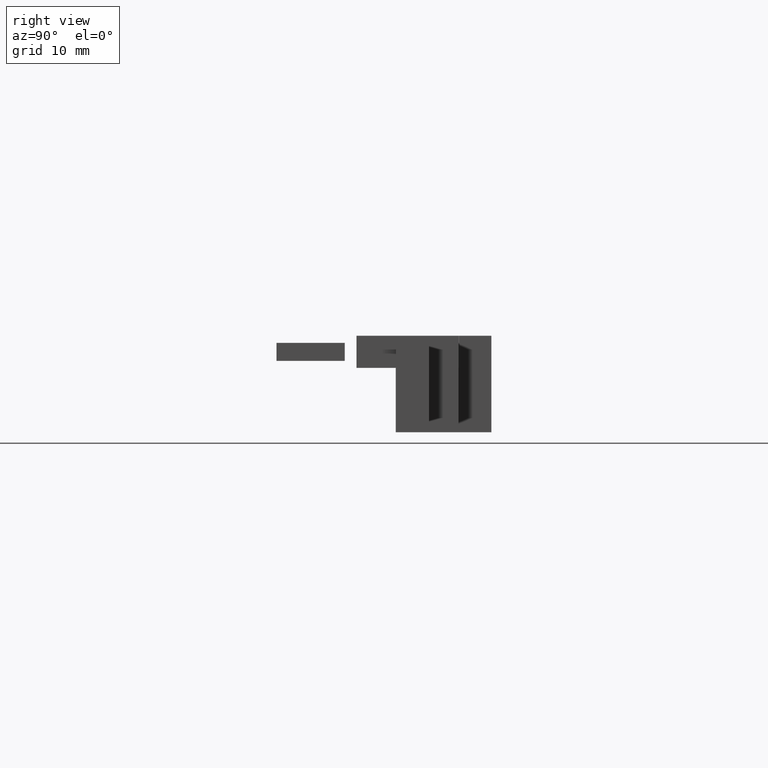
[diagram: clean part render]
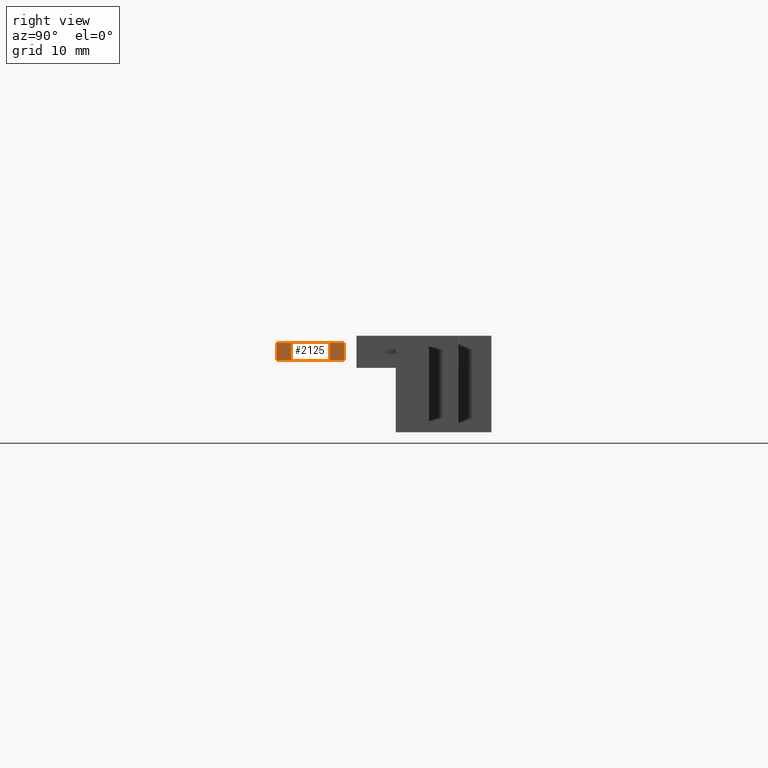
[diagram: same view with one face highlighted and labeled with its STEP entity id]
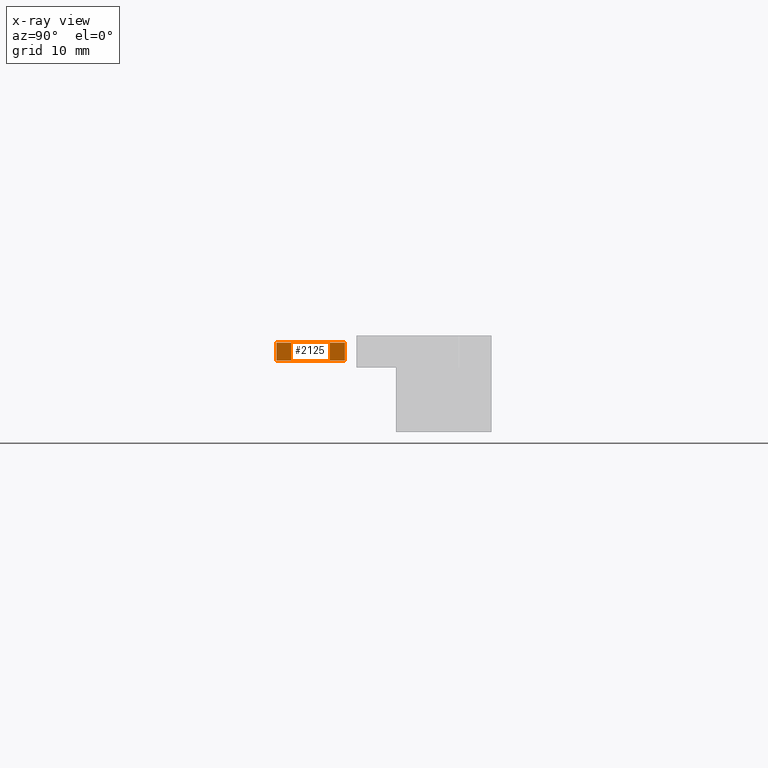
[diagram: x-ray of the same camera — body ghosted, the highlighted face saturated]
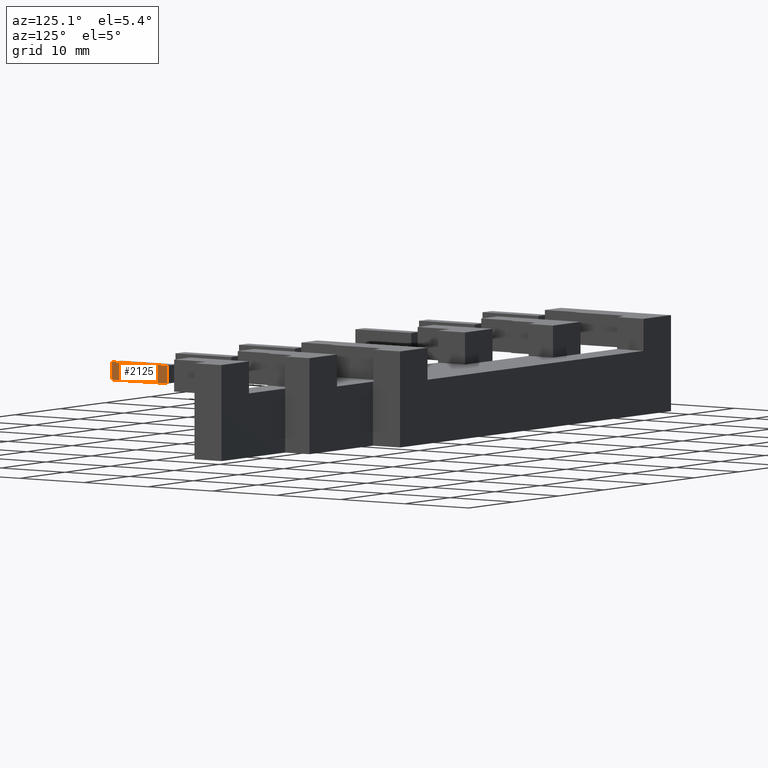
[diagram: same view with one face highlighted and labeled with its STEP entity id]
A machine part, right view. The second image highlights one B-rep face of the part: STEP entity #2125.
The next image is the same camera in x-ray: the body ghosted, the highlighted face saturated — about 0% of this face is hidden behind the body in this view.
A second angle (auxiliary view) of the same face is appended — the face is thin or edge-on in the first view.
In plain terms, the highlighted planar face has unit normal (1, 0, 0).
Its self-contained STEP definition (entity closure, byte-faithful):
#2069=CARTESIAN_POINT('',(85.000000000000128,-14.499999999999035,107.19999999999041));
#2070=VERTEX_POINT('',#2069);
#2077=CARTESIAN_POINT('',(85.000000000000071,-14.499999999999035,104.89999999999043));
#2078=VERTEX_POINT('',#2077);
#2079=CARTESIAN_POINT('',(85.000000000000071,-14.499999999999035,104.89999999999043));
#2080=DIRECTION('',(0.0,0.0,1.0));
#2081=VECTOR('',#2080,2.299999999999997);
#2082=LINE('',#2079,#2081);
#2083=EDGE_CURVE('',#2078,#2070,#2082,.T.);
#2095=CARTESIAN_POINT('',(85.000000000000071,-14.499999999999035,104.89999999999043));
#2096=DIRECTION('',(1.0,0.0,0.0));
#2097=DIRECTION('',(0.0,0.0,-1.0));
#2098=AXIS2_PLACEMENT_3D('',#2095,#2096,#2097);
#2099=PLANE('',#2098);
#2100=CARTESIAN_POINT('',(85.000000000000313,-23.1999999999992,107.19999999999044));
#2101=VERTEX_POINT('',#2100);
#2102=CARTESIAN_POINT('',(85.000000000000128,-14.499999999999039,107.19999999999044));
#2103=DIRECTION('',(0.0,-1.0,0.0));
#2104=VECTOR('',#2103,8.700000000000161);
#2105=LINE('',#2102,#2104);
#2106=EDGE_CURVE('',#2070,#2101,#2105,.T.);
#2107=ORIENTED_EDGE('',*,*,#2106,.T.);
#2108=CARTESIAN_POINT('',(85.00000000000027,-23.199999999999214,104.89999999999041));
#2109=VERTEX_POINT('',#2108);
#2110=CARTESIAN_POINT('',(85.00000000000027,-23.199999999999214,104.89999999999041));
#2111=DIRECTION('',(0.0,0.0,1.0));
#2112=VECTOR('',#2111,2.299999999999997);
#2113=LINE('',#2110,#2112);
#2114=EDGE_CURVE('',#2109,#2101,#2113,.T.);
#2115=ORIENTED_EDGE('',*,*,#2114,.F.);
#2116=CARTESIAN_POINT('',(85.00000000000027,-23.199999999999214,104.89999999999041));
#2117=DIRECTION('',(0.0,1.0,0.0));
#2118=VECTOR('',#2117,8.700000000000161);
#2119=LINE('',#2116,#2118);
#2120=EDGE_CURVE('',#2109,#2078,#2119,.T.);
#2121=ORIENTED_EDGE('',*,*,#2120,.T.);
#2122=ORIENTED_EDGE('',*,*,#2083,.T.);
#2123=EDGE_LOOP('',(#2107,#2115,#2121,#2122));
#2124=FACE_OUTER_BOUND('',#2123,.T.);
#2125=ADVANCED_FACE('',(#2124),#2099,.T.);